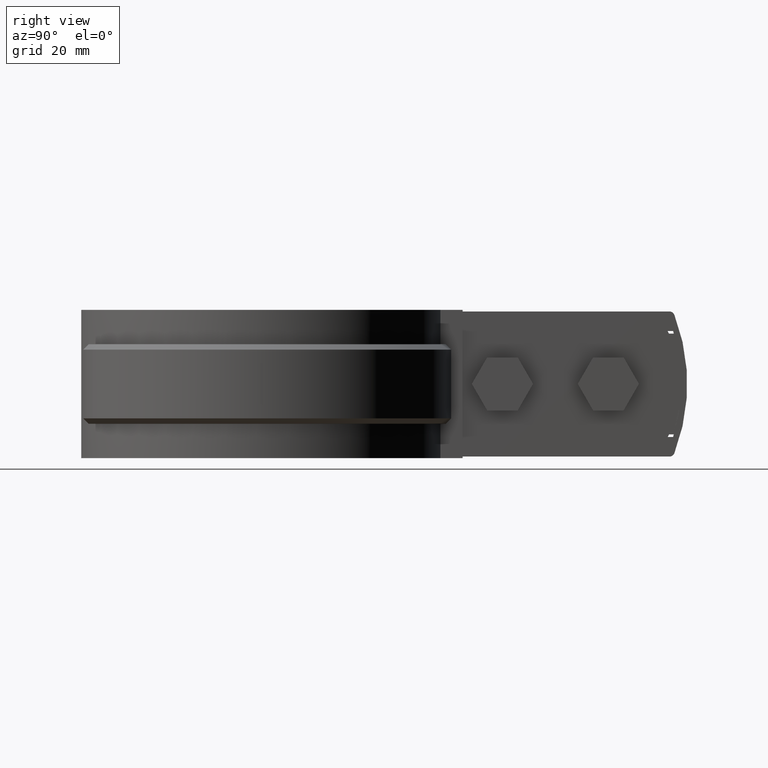
[diagram: clean part render]
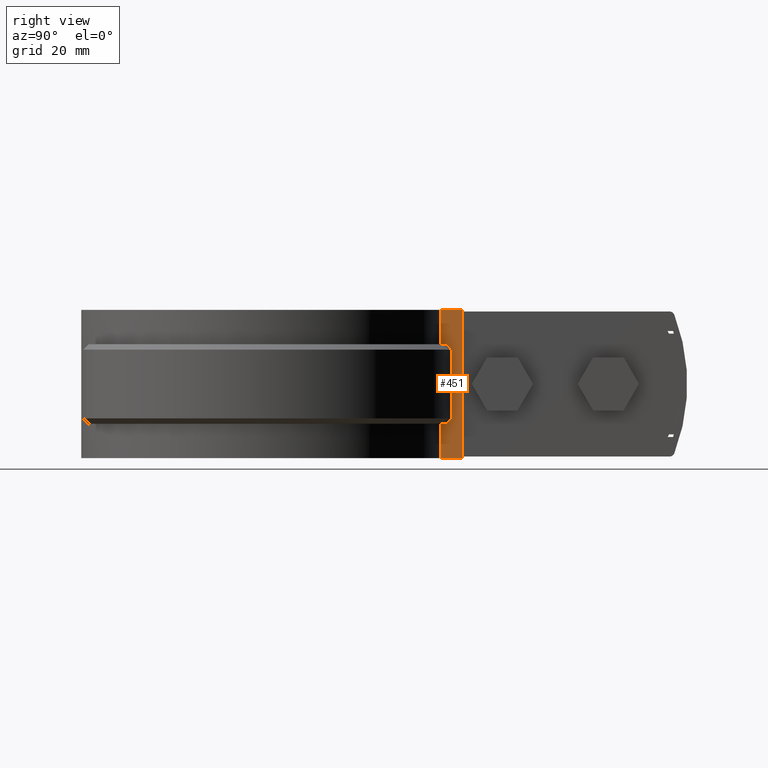
[diagram: same view with one face highlighted and labeled with its STEP entity id]
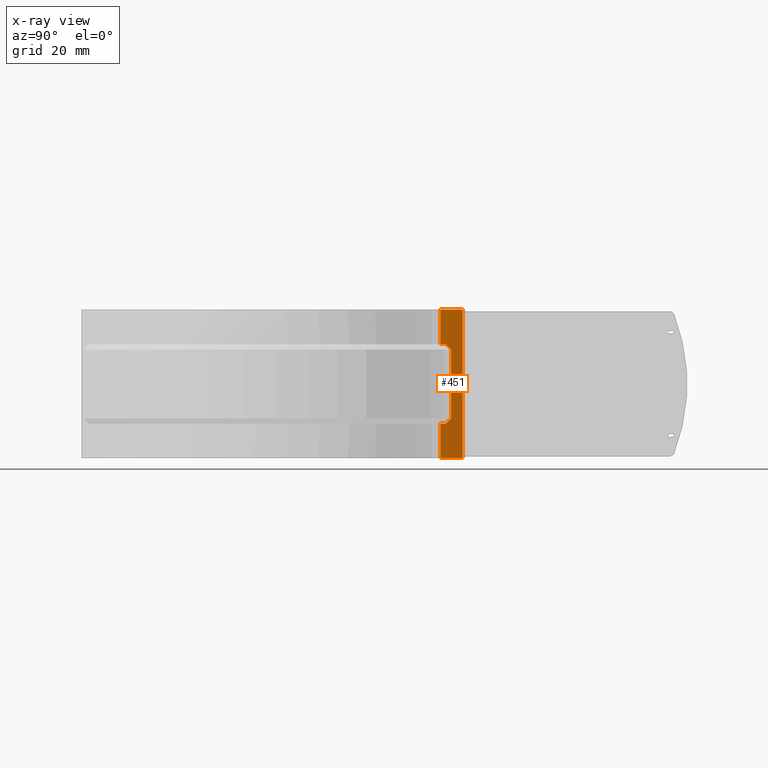
[diagram: x-ray of the same camera — body ghosted, the highlighted face saturated]
A machine part, right view. The second image highlights one B-rep face of the part: STEP entity #451.
The next image is the same camera in x-ray: the body ghosted, the highlighted face saturated — about 0% of this face is hidden behind the body in this view.
In plain terms, the highlighted planar face has unit normal (1, -0, 0).
Its self-contained STEP definition (entity closure, byte-faithful):
#451 = ADVANCED_FACE( '', ( #913 ), #914, .T. );
#913 = FACE_OUTER_BOUND( '', #2021, .T. );
#914 = PLANE( '', #2022 );
#2021 = EDGE_LOOP( '', ( #4536, #4537, #4538, #4539, #4540, #4541, #4542, #4543, #4544, #4545 ) );
#2022 = AXIS2_PLACEMENT_3D( '', #4546, #4547, #4548 );
#4536 = ORIENTED_EDGE( '', *, *, #7114, .T. );
#4537 = ORIENTED_EDGE( '', *, *, #7115, .T. );
#4538 = ORIENTED_EDGE( '', *, *, #7116, .F. );
#4539 = ORIENTED_EDGE( '', *, *, #7105, .F. );
#4540 = ORIENTED_EDGE( '', *, *, #7117, .T. );
#4541 = ORIENTED_EDGE( '', *, *, #7118, .T. );
#4542 = ORIENTED_EDGE( '', *, *, #7119, .F. );
#4543 = ORIENTED_EDGE( '', *, *, #7120, .T. );
#4544 = ORIENTED_EDGE( '', *, *, #7121, .F. );
#4545 = ORIENTED_EDGE( '', *, *, #7098, .F. );
#4546 = CARTESIAN_POINT( '', ( 6.09999999999998, 33.6973296419761, -26.5000000000000 ) );
#4547 = DIRECTION( '', ( 1.00000000000000, -6.07153216591882E-017, 0.000000000000000 ) );
#4548 = DIRECTION( '', ( -6.07153216591882E-017, -1.00000000000000, 0.000000000000000 ) );
#7098 = EDGE_CURVE( '', #8247, #8249, #8250, .T. );
#7105 = EDGE_CURVE( '', #8260, #8262, #8263, .T. );
#7114 = EDGE_CURVE( '', #8247, #8278, #8279, .T. );
#7115 = EDGE_CURVE( '', #8278, #8280, #8281, .T. );
#7116 = EDGE_CURVE( '', #8262, #8280, #8282, .T. );
#7117 = EDGE_CURVE( '', #8260, #8283, #8284, .T. );
#7118 = EDGE_CURVE( '', #8283, #8285, #8286, .T. );
#7119 = EDGE_CURVE( '', #8287, #8285, #8288, .T. );
#7120 = EDGE_CURVE( '', #8287, #8289, #8290, .T. );
#7121 = EDGE_CURVE( '', #8249, #8289, #8291, .T. );
#8247 = VERTEX_POINT( '', #11832 );
#8249 = VERTEX_POINT( '', #11834 );
#8250 = LINE( '', #11835, #11836 );
#8260 = VERTEX_POINT( '', #11850 );
#8262 = VERTEX_POINT( '', #11852 );
#8263 = LINE( '', #11853, #11854 );
#8278 = VERTEX_POINT( '', #11872 );
#8279 = LINE( '', #11873, #11874 );
#8280 = VERTEX_POINT( '', #11875 );
#8281 = LINE( '', #11876, #11877 );
#8282 = LINE( '', #11878, #11879 );
#8283 = VERTEX_POINT( '', #11880 );
#8284 = LINE( '', #11881, #11882 );
#8285 = VERTEX_POINT( '', #11883 );
#8286 = B_SPLINE_CURVE_WITH_KNOTS( '', 3, ( #11884, #11885, #11886, #11887 ), .UNSPECIFIED., .F., .F., ( 4, 4 ), ( 0.000000000000000, 0.00142478149816514 ), .UNSPECIFIED. );
#8287 = VERTEX_POINT( '', #11888 );
#8288 = LINE( '', #11889, #11890 );
#8289 = VERTEX_POINT( '', #11891 );
#8290 = B_SPLINE_CURVE_WITH_KNOTS( '', 3, ( #11892, #11893, #11894, #11895 ), .UNSPECIFIED., .F., .F., ( 4, 4 ), ( 1.96261557335472E-017, 0.00142478149816512 ), .UNSPECIFIED. );
#8291 = LINE( '', #11896, #11897 );
#11832 = CARTESIAN_POINT( '', ( 6.09999999999995, 33.6973296419761, -26.5000000000000 ) );
#11834 = CARTESIAN_POINT( '', ( 6.09999999999995, 33.6973296419761, -20.0000000000000 ) );
#11835 = CARTESIAN_POINT( '', ( 6.09999999999995, 33.6973296419761, -26.5000000000000 ) );
#11836 = VECTOR( '', #13773, 1000.00000000000 );
#11850 = CARTESIAN_POINT( '', ( 6.09999999999995, 33.6973296419761, -5.00000000000000 ) );
#11852 = CARTESIAN_POINT( '', ( 6.09999999999995, 33.6973296419761, 1.50000000000000 ) );
#11853 = CARTESIAN_POINT( '', ( 6.09999999999995, 33.6973296419761, -26.5000000000000 ) );
#11854 = VECTOR( '', #13787, 1000.00000000000 );
#11872 = CARTESIAN_POINT( '', ( 6.09999999999996, 37.8989738519314, -26.5000000000000 ) );
#11873 = CARTESIAN_POINT( '', ( 6.09999999999998, 33.6973296419761, -26.5000000000000 ) );
#11874 = VECTOR( '', #13806, 1000.00000000000 );
#11875 = CARTESIAN_POINT( '', ( 6.09999999999998, 37.8989738519314, 1.50000000000000 ) );
#11876 = CARTESIAN_POINT( '', ( 6.09999999999998, 37.8989738519314, -26.5000000000000 ) );
#11877 = VECTOR( '', #13807, 1000.00000000000 );
#11878 = CARTESIAN_POINT( '', ( 6.09999999999998, 33.6973296419761, 1.50000000000000 ) );
#11879 = VECTOR( '', #13808, 1000.00000000000 );
#11880 = CARTESIAN_POINT( '', ( 6.09999999999998, 34.7131102755141, -5.00000000000000 ) );
#11881 = CARTESIAN_POINT( '', ( 6.09999999999998, 33.6973296419761, -5.00000000000000 ) );
#11882 = VECTOR( '', #13809, 1000.00000000000 );
#11883 = CARTESIAN_POINT( '', ( 6.09999999999998, 35.7280005737797, -6.00000000000000 ) );
#11884 = CARTESIAN_POINT( '', ( 6.09999999999998, 34.7131102755141, -5.00000000000000 ) );
#11885 = CARTESIAN_POINT( '', ( 6.09999999999998, 35.0514779785923, -5.33326132474473 ) );
#11886 = CARTESIAN_POINT( '', ( 6.09999999999998, 35.3897727736946, -5.66659668821882 ) );
#11887 = CARTESIAN_POINT( '', ( 6.09999999999998, 35.7280005737797, -6.00000000000000 ) );
#11888 = CARTESIAN_POINT( '', ( 6.09999999999998, 35.7280005737797, -19.0000000000000 ) );
#11889 = CARTESIAN_POINT( '', ( 6.09999999999998, 35.7280005737797, -20.0000000000000 ) );
#11890 = VECTOR( '', #13810, 1000.00000000000 );
#11891 = CARTESIAN_POINT( '', ( 6.09999999999998, 34.7131102755141, -20.0000000000000 ) );
#11892 = CARTESIAN_POINT( '', ( 6.09999999999997, 35.7280005737797, -19.0000000000000 ) );
#11893 = CARTESIAN_POINT( '', ( 6.09999999999997, 35.3897727736946, -19.3334033117812 ) );
#11894 = CARTESIAN_POINT( '', ( 6.09999999999998, 35.0514779785923, -19.6667386752553 ) );
#11895 = CARTESIAN_POINT( '', ( 6.09999999999998, 34.7131102755141, -20.0000000000000 ) );
#11896 = CARTESIAN_POINT( '', ( 6.09999999999998, 33.6973296419761, -20.0000000000000 ) );
#11897 = VECTOR( '', #13811, 1000.00000000000 );
#13773 = DIRECTION( '', ( 0.000000000000000, 0.000000000000000, 1.00000000000000 ) );
#13787 = DIRECTION( '', ( 0.000000000000000, 0.000000000000000, 1.00000000000000 ) );
#13806 = DIRECTION( '', ( 6.07153216591882E-017, 1.00000000000000, 0.000000000000000 ) );
#13807 = DIRECTION( '', ( 0.000000000000000, 0.000000000000000, 1.00000000000000 ) );
#13808 = DIRECTION( '', ( 6.07153216591882E-017, 1.00000000000000, 0.000000000000000 ) );
#13809 = DIRECTION( '', ( 8.32667268468867E-017, 1.00000000000000, 0.000000000000000 ) );
#13810 = DIRECTION( '', ( 0.000000000000000, 0.000000000000000, 1.00000000000000 ) );
#13811 = DIRECTION( '', ( 8.32667268468867E-017, 1.00000000000000, 0.000000000000000 ) );